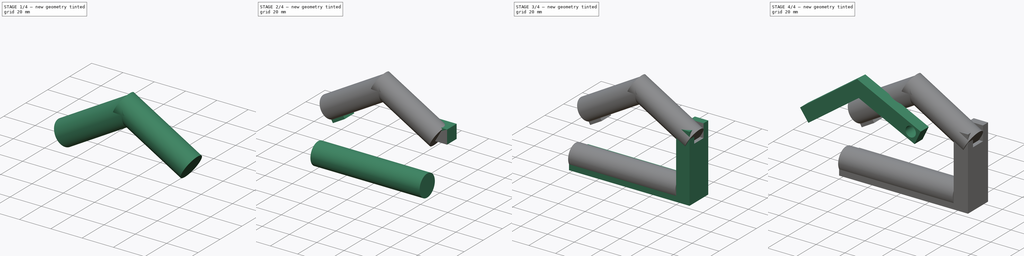
[diagram: build sequence overview — one tinted view per stage of 4, left to right]
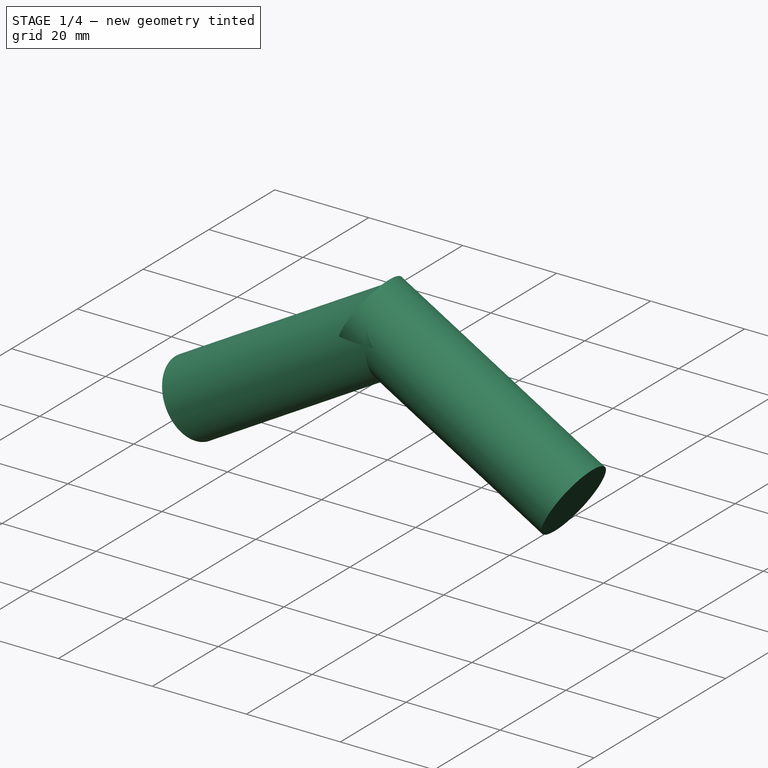
[diagram: stage 1 of 4 — iso view after this stage's code; geometry added in this stage tinted green]
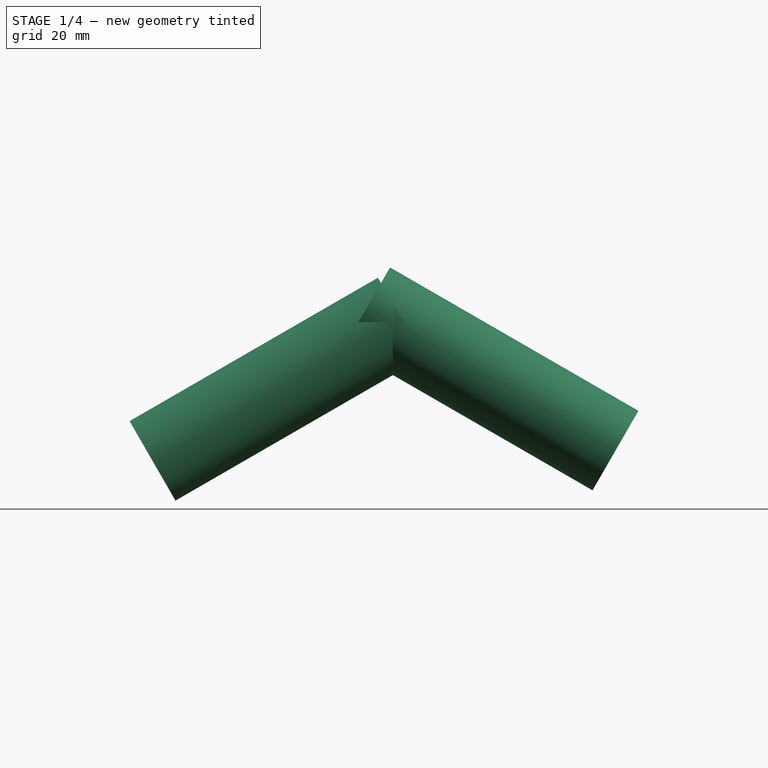
[diagram: stage 1 of 4 — front view after this stage's code; geometry added in this stage tinted green]
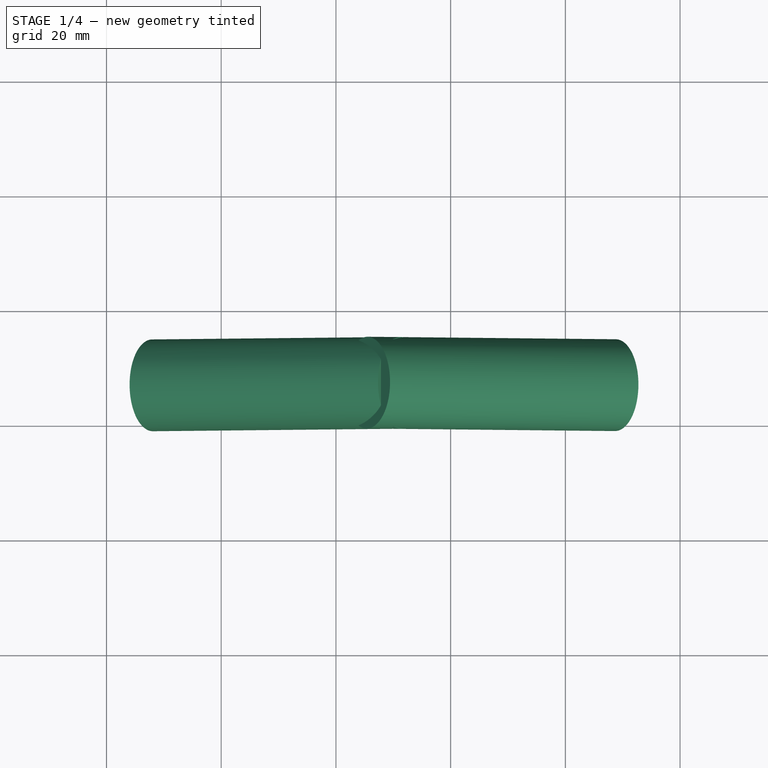
[diagram: stage 1 of 4 — top view after this stage's code; geometry added in this stage tinted green]
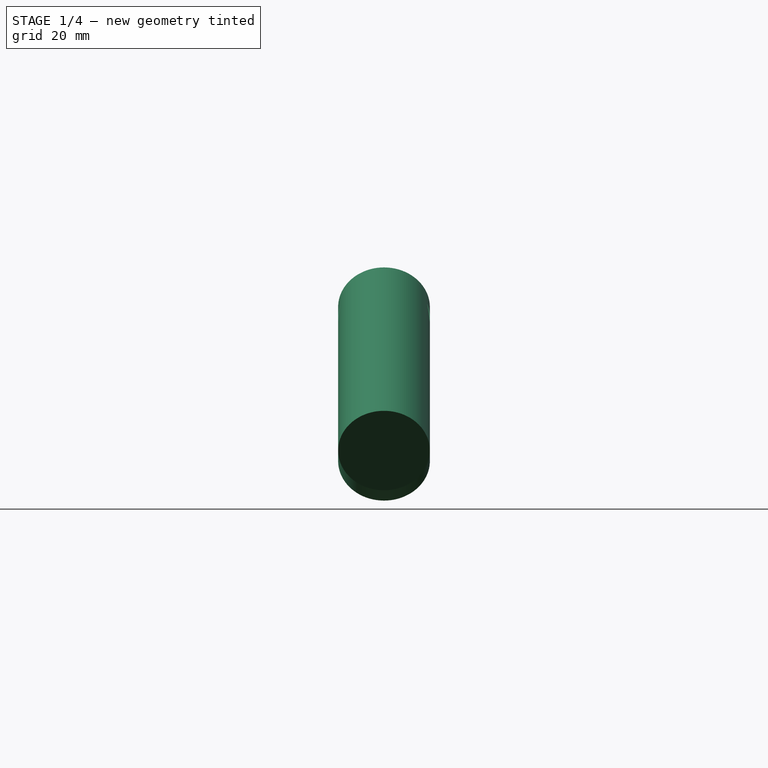
[diagram: stage 1 of 4 — right view after this stage's code; geometry added in this stage tinted green]
FCSTD DOCUMENT  (FreeCAD 1.0R38806 (Git))
Label: Solución Reto 1
License: All rights reserved
LicenseURL: http://en.wikipedia.org/wiki/All_rights_reserved
objects: PartDesign::Body×3, Part::Cut×3, Part::Cylinder×3, Sketcher::SketchObject×2, PartDesign::Pad×2, Part::Box×2
note: 21 computed .brp shape members not serialized (recipe doc carries the construction recipe); baked Part::Feature solids carry a one-line shape summary decoded from their .brp

FEATURE [Part::Cylinder] Cylinder001
  Angle = 360
  AttacherType = Attacher::AttachEngine3D
  FirstAngle = 0
  Height = 50
  Placement = pos=(45.4345,7,67.6847) rot=(0,-1,0;4.18879rad)
  Radius = 8
  SecondAngle = 0
FEATURE [Part::Cylinder] Cylinder002
  Angle = 360
  AttacherType = Attacher::AttachEngine3D
  FirstAngle = 0
  Height = 50
  Placement = pos=(8.02558,7,40.8905) rot=(0,-1,0;5.23599rad)
  Radius = 8
  SecondAngle = 0
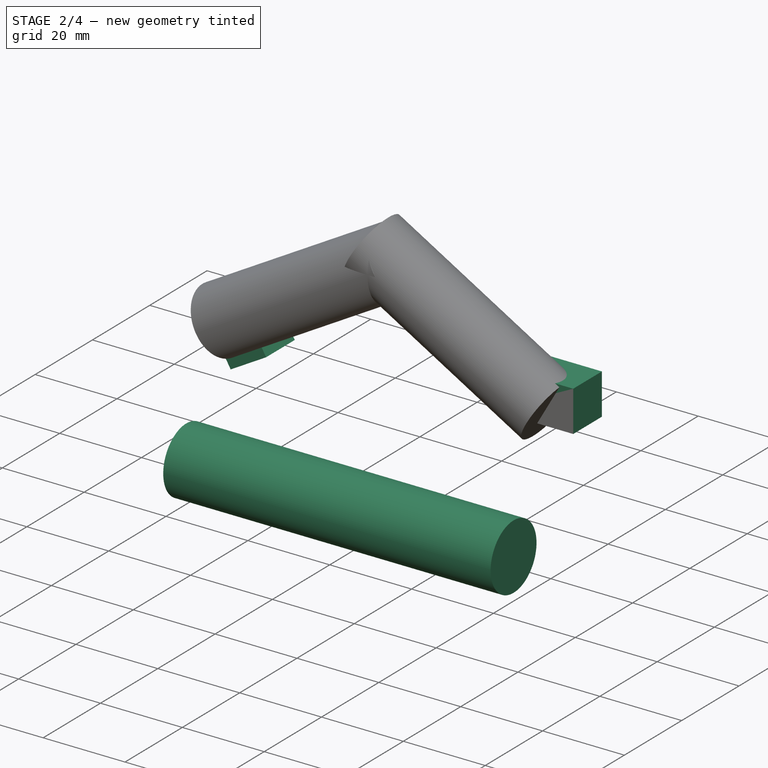
[diagram: stage 2 of 4 — iso view after this stage's code; geometry added in this stage tinted green]
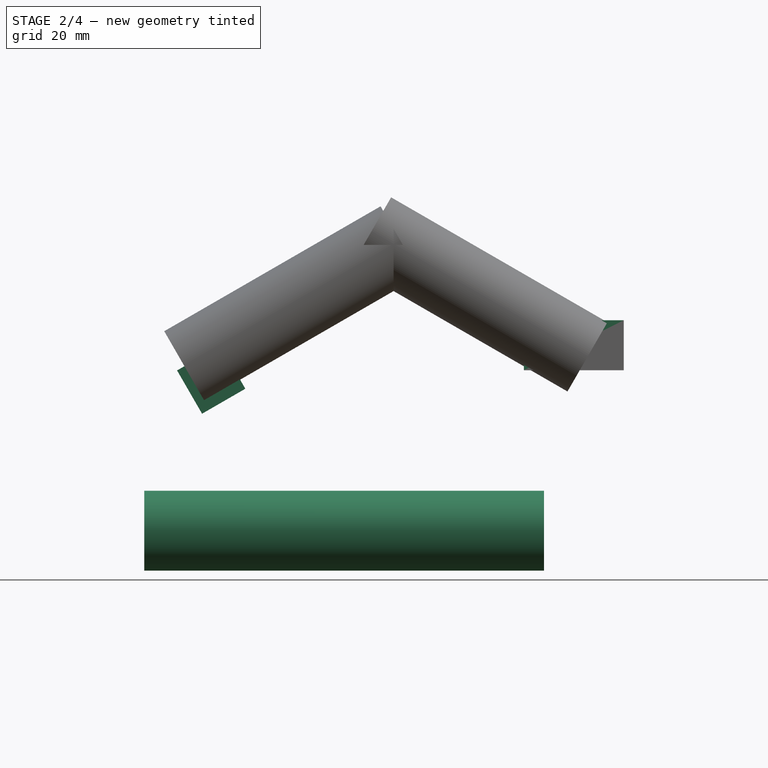
[diagram: stage 2 of 4 — front view after this stage's code; geometry added in this stage tinted green]
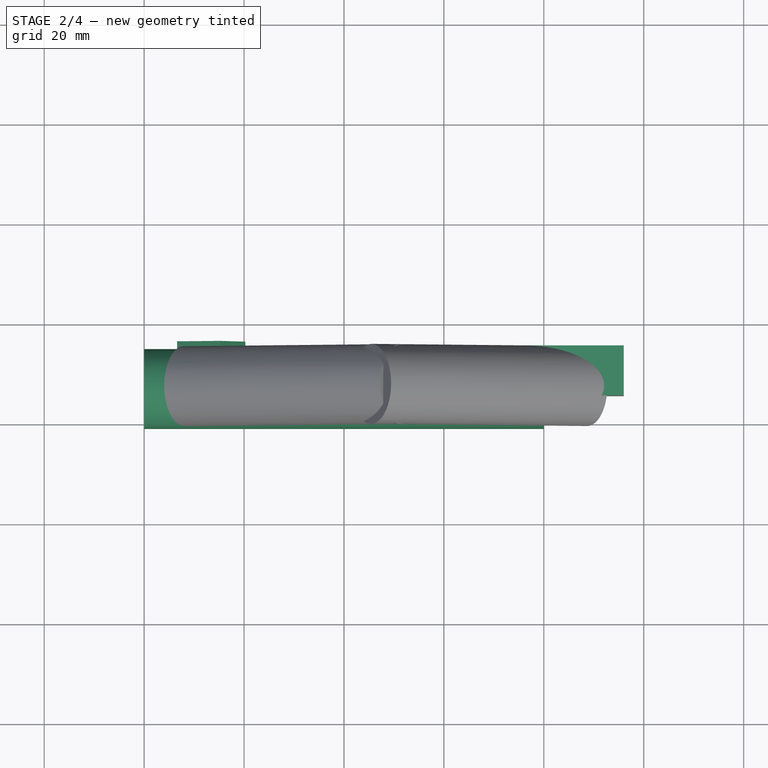
[diagram: stage 2 of 4 — top view after this stage's code; geometry added in this stage tinted green]
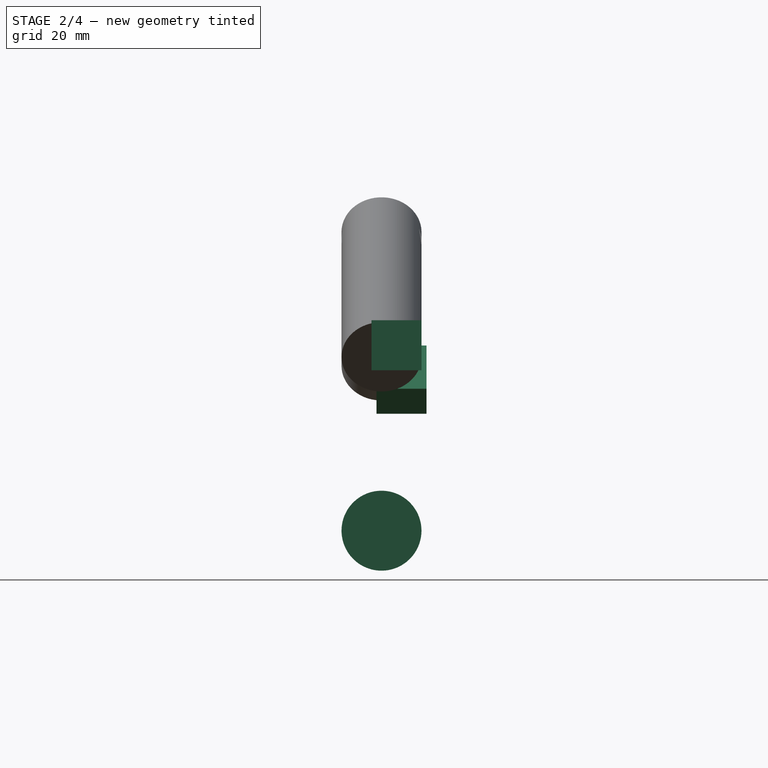
[diagram: stage 2 of 4 — right view after this stage's code; geometry added in this stage tinted green]
FEATURE [PartDesign::Body] Body002  label="Articulación"
  AllowCompound = false
  Group = -> [Sketch001,Pad001]
  Origin = -> Origin002
  Placement = pos=(28,15,0) rot=(0,0,1;0rad)
  Tip = -> Pad001
FEATURE [Part::Box] Box  label="Cubo"
  AttacherType = Attacher::AttachEngine3D
  Height = 10
  Length = 20
  Placement = pos=(76,5,40) rot=(0,0,1;0rad)
  Width = 10
FEATURE [Part::Box] Box001  label="Cube"
  AttacherType = Attacher::AttachEngine3D
  Height = 10
  Length = 10
  Placement = pos=(6.59808,6,39.9641) rot=(0,1,0;1.0472rad)
  Width = 10
FEATURE [Part::Cylinder] Cylinder
  Angle = 360
  AttacherType = Attacher::AttachEngine3D
  FirstAngle = 0
  Height = 80
  Placement = pos=(0.0255765,7,7.89048) rot=(0,-1,0;4.71239rad)
  Radius = 8
  SecondAngle = 0
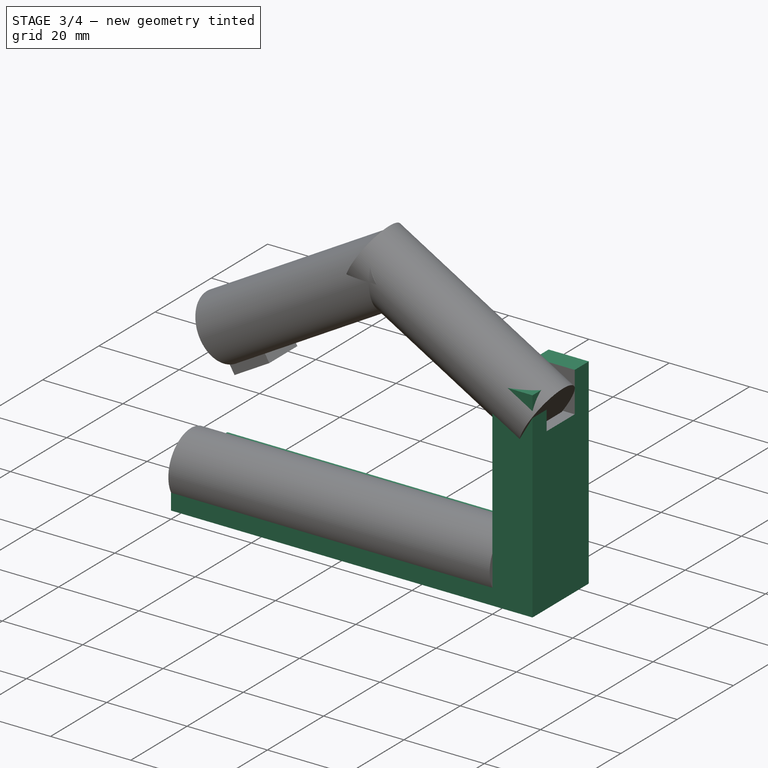
[diagram: stage 3 of 4 — iso view after this stage's code; geometry added in this stage tinted green]
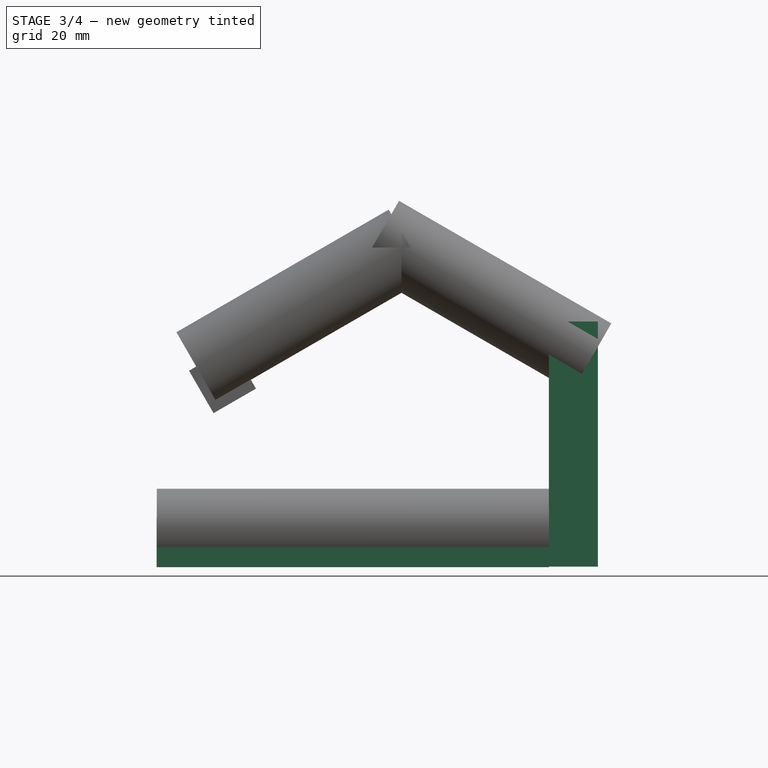
[diagram: stage 3 of 4 — front view after this stage's code; geometry added in this stage tinted green]
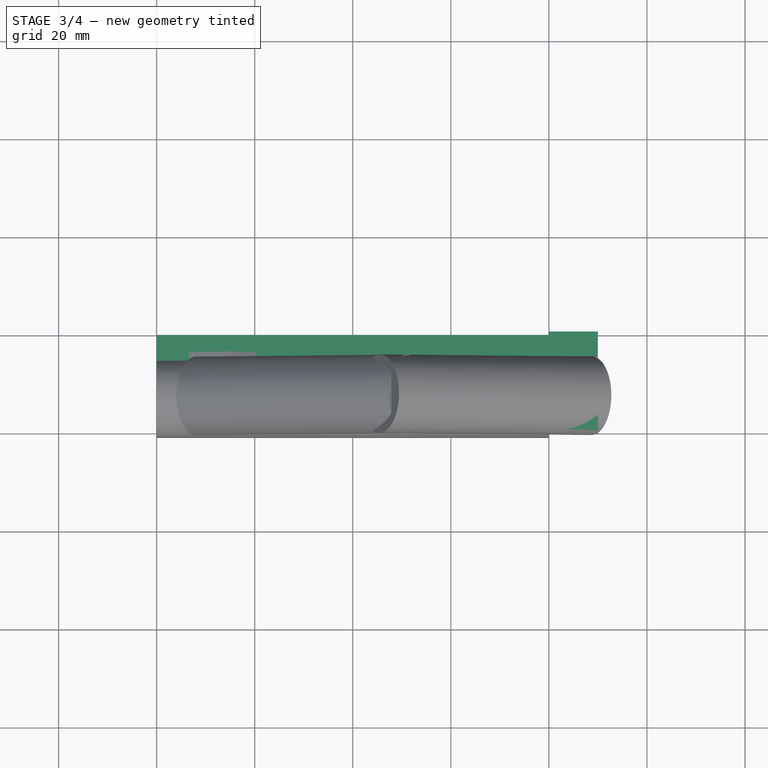
[diagram: stage 3 of 4 — top view after this stage's code; geometry added in this stage tinted green]
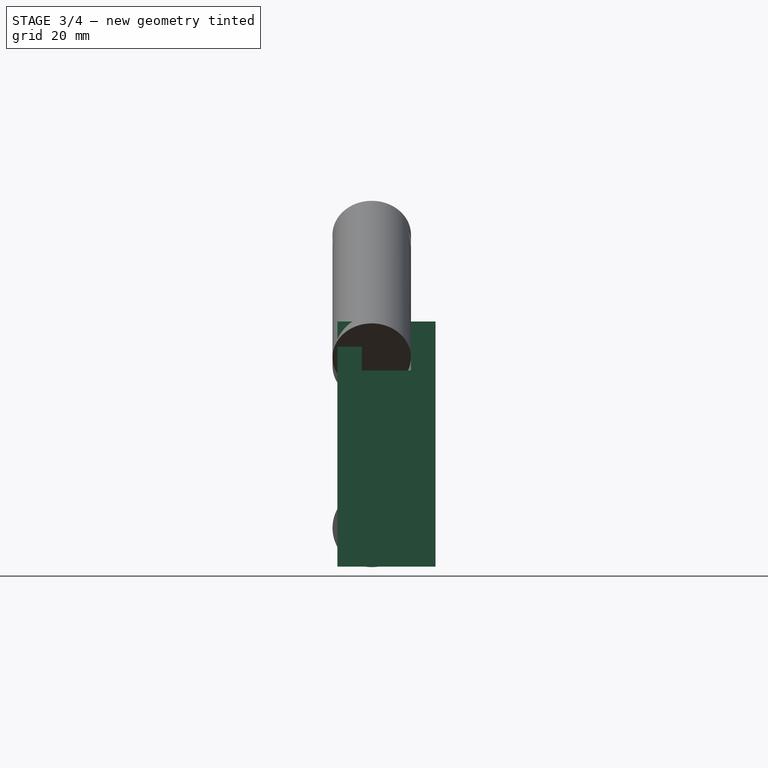
[diagram: stage 3 of 4 — right view after this stage's code; geometry added in this stage tinted green]
FEATURE [Sketcher::SketchObject] Sketch
  ArcFitTolerance = 0
  AttachmentSupport = -> [XZ_Plane]
  FullyConstrained = true
  MakeInternals = false
  MapMode = 5
  Placement = pos=(0,0,0) rot=(1,0,0;1.5708rad)
  expr: Constraints[13] = 1 cm
  sketch-geometry (6):
    g0: LineSegment StartX=0 StartY=0 StartZ=0 EndX=90 EndY=0 EndZ=0
    g1: LineSegment StartX=90 StartY=0 StartZ=0 EndX=90 EndY=50 EndZ=0
    g2: LineSegment StartX=90 StartY=50 StartZ=0 EndX=80 EndY=50 EndZ=0
    g3: LineSegment StartX=80 StartY=50 StartZ=0 EndX=80 EndY=10 EndZ=0
    g4: LineSegment StartX=80 StartY=10 StartZ=0 EndX=0 EndY=10 EndZ=0
    g5: LineSegment StartX=0 StartY=10 StartZ=0 EndX=0 EndY=0 EndZ=0
  constraints (17):
    c: Horizontal(g0)
    c: Coincident(g0,g1)
    c: Vertical(g1)
    c: Coincident(g1,g2)
    c: Horizontal(g2)
    c: Coincident(g2,g3)
    c: Vertical(g3)
    c: Coincident(g3,g4)
    c: Horizontal(g4)
    c: Coincident(g4,g5)
    c: Coincident(g5,g0)
    c: Vertical(g5)
    c: DistanceY(g1,g1) = 50
    c: DistanceY(g5,g5) = 10
    c: Equal(g5,g2)
    c: DistanceX(g0,g0) = 90
    c: Coincident(g0,g-1)
FEATURE [PartDesign::Pad] Pad
  Direction = (0,-1,2e-16)
  Length = 20
  Length2 = 10
  Placement = pos=(0,0,0) rot=(1,0,0;1.5708rad)
  Profile = -> Sketch
  ReferenceAxis = -> Sketch [N_Axis]
  Refine = true
  Suppressed = false
  Type = 0
FEATURE [Part::Cut] Cut001
  Base = -> Body
  Refine = true
  Tool = -> Box
FEATURE [Part::Cut] Cut002  label="Muesca soporte"
  Base = -> Body
  Refine = true
  Tool = -> Box
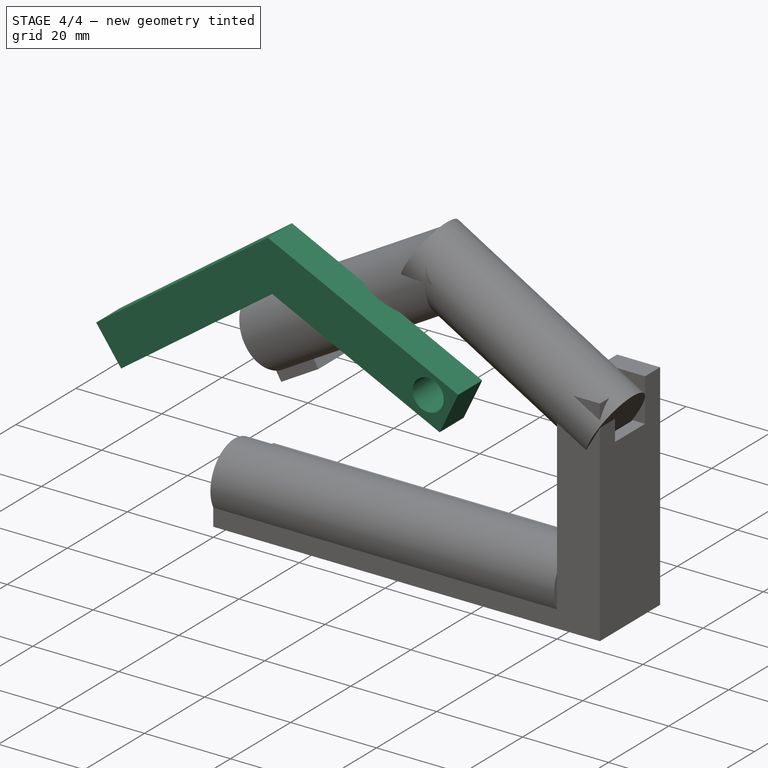
[diagram: stage 4 of 4 — iso view after this stage's code; geometry added in this stage tinted green]
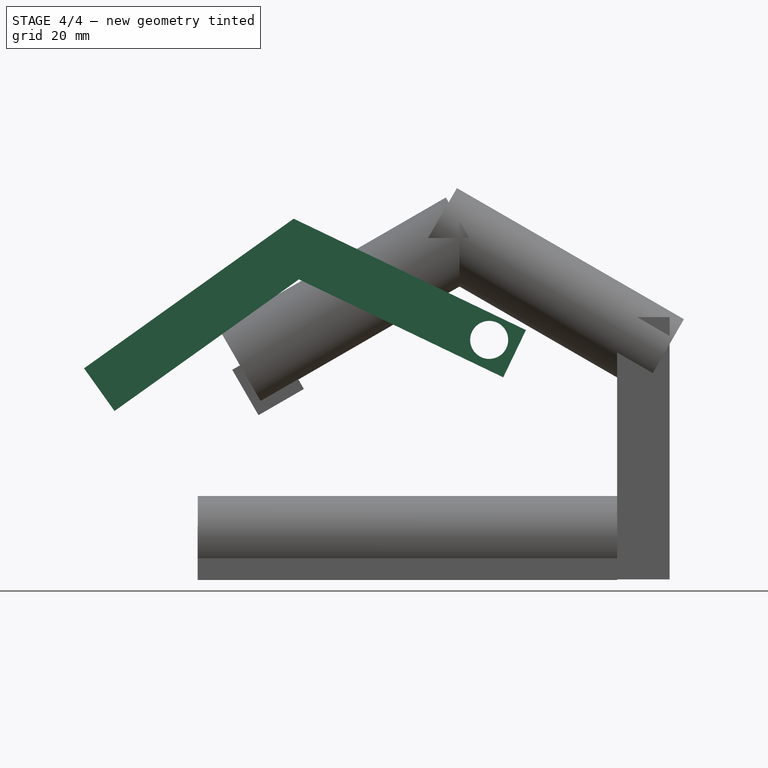
[diagram: stage 4 of 4 — front view after this stage's code; geometry added in this stage tinted green]
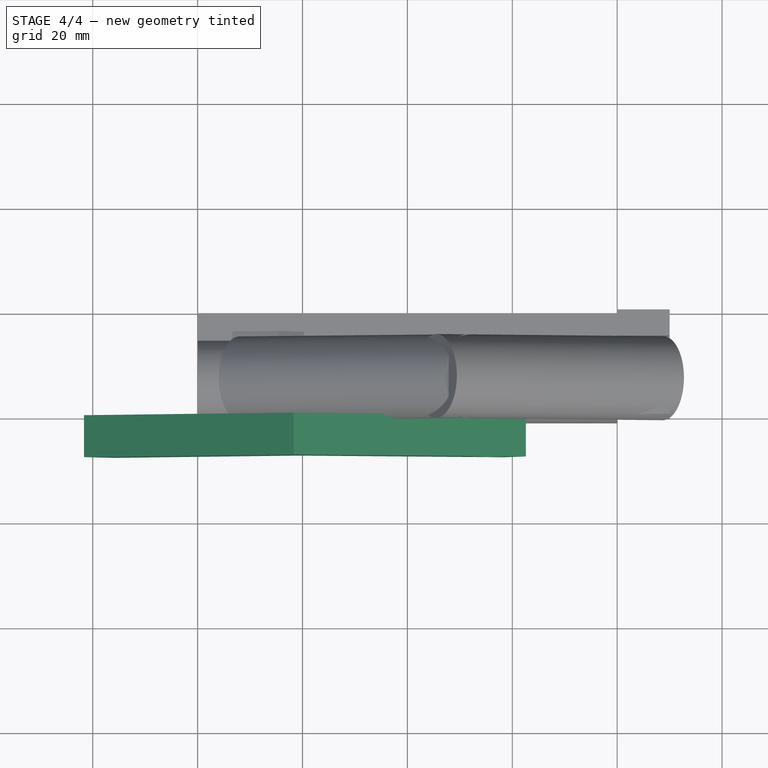
[diagram: stage 4 of 4 — top view after this stage's code; geometry added in this stage tinted green]
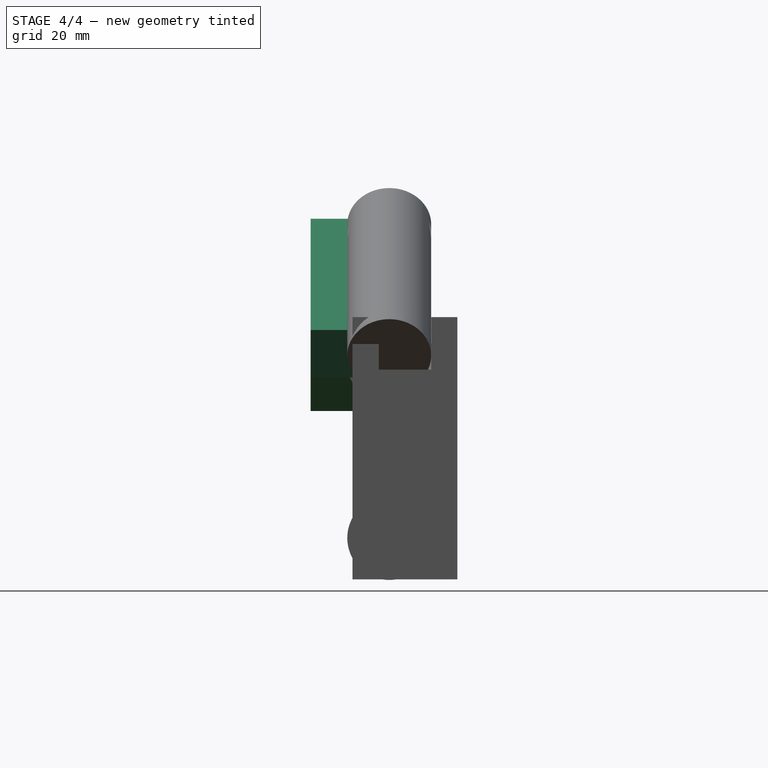
[diagram: stage 4 of 4 — right view after this stage's code; geometry added in this stage tinted green]
FEATURE [PartDesign::Body] Body  label="Cuerpo"
  AllowCompound = false
  Group = -> [Sketch,Pad]
  Origin = -> Origin
  Placement = pos=(0,20,0) rot=(0,0,1;0rad)
  Tip = -> Pad
FEATURE [PartDesign::Body] Body001  label="Ejes"
  AllowCompound = false
  Origin = -> Origin001
FEATURE [Sketcher::SketchObject] Sketch001
  ArcFitTolerance = 0
  AttachmentSupport = -> [XZ_Plane002]
  FullyConstrained = false
  MakeInternals = false
  MapMode = 5
  Placement = pos=(0,0,0) rot=(1,0,0;1.5708rad)
  sketch-geometry (8):
    g0: LineSegment StartX=-21.6648 StartY=40.242 StartZ=0 EndX=18.311 EndY=68.7748 EndZ=0
    g1: LineSegment StartX=18.311 StartY=68.7748 StartZ=0 EndX=62.599 EndY=47.5439 EndZ=0
    g2: LineSegment StartX=62.599 StartY=47.5439 StartZ=0 EndX=58.2762 EndY=38.5265 EndZ=0
    g3: LineSegment StartX=58.2762 StartY=38.5265 StartZ=0 EndX=19.3136 EndY=57.2045 EndZ=0
    g4: LineSegment StartX=19.3136 StartY=57.2045 StartZ=0 EndX=-15.8553 EndY=32.1026 EndZ=0
    g5: LineSegment StartX=-15.8553 StartY=32.1026 StartZ=0 EndX=-21.6648 EndY=40.242 EndZ=0
    g6: Circle CenterX=85.102 CenterY=44.5512 CenterZ=0 NormalX=0 NormalY=0 NormalZ=1 AngleXU=0 Radius=3.625
    g7: Circle CenterX=55.593 CenterY=45.6609 CenterZ=0 NormalX=0 NormalY=0 NormalZ=1 AngleXU=0 Radius=3.625
  constraints (15):
    c: Coincident(g0,g1)
    c: Coincident(g1,g2)
    c: Coincident(g2,g3)
    c: Coincident(g3,g4)
    c: Coincident(g4,g5)
    c: Coincident(g5,g0)
    c: Distance(g5) = 10
    c: Distance(g2) = 10
    c: Equal(g0,g1)
    c: Equal(g4,g3)
    c: Parallel(g0,g4)
    c: Parallel(g1,g3)
    c: Angle(g4,g5) = 1.5708
    c: Diameter(g6) = 7.25
    c: Diameter(g7) = 7.25
FEATURE [PartDesign::Pad] Pad001
  Direction = (0,-1,2e-16)
  Length = 8
  Length2 = 10
  Placement = pos=(0,0,0) rot=(1,0,0;1.5708rad)
  Profile = -> Sketch001
  ReferenceAxis = -> Sketch001 [N_Axis]
  Refine = true
  Suppressed = false
  Type = 0
FEATURE [Part::Cut] Cut  label="Soporte"
  Base = -> Body
  Refine = true
  Tool = -> Box
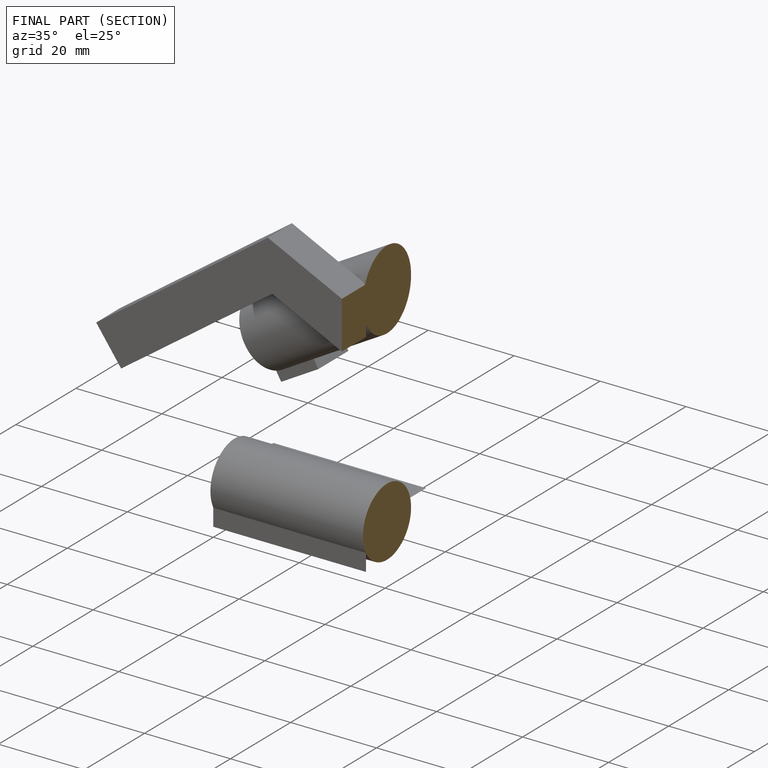
[diagram: finished part — half-section view (interior)]
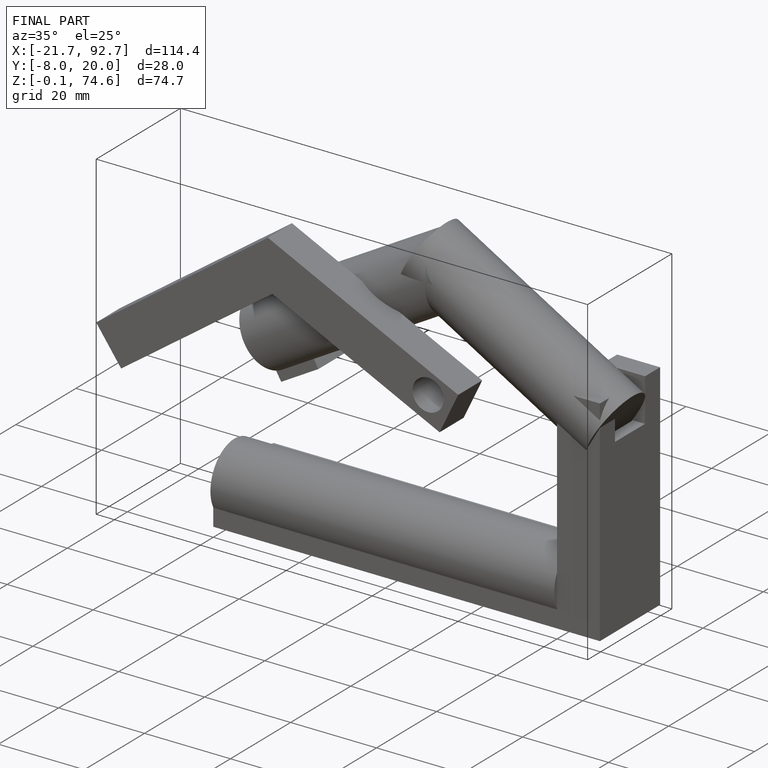
[diagram: finished part — iso view with bounding-box wireframe]
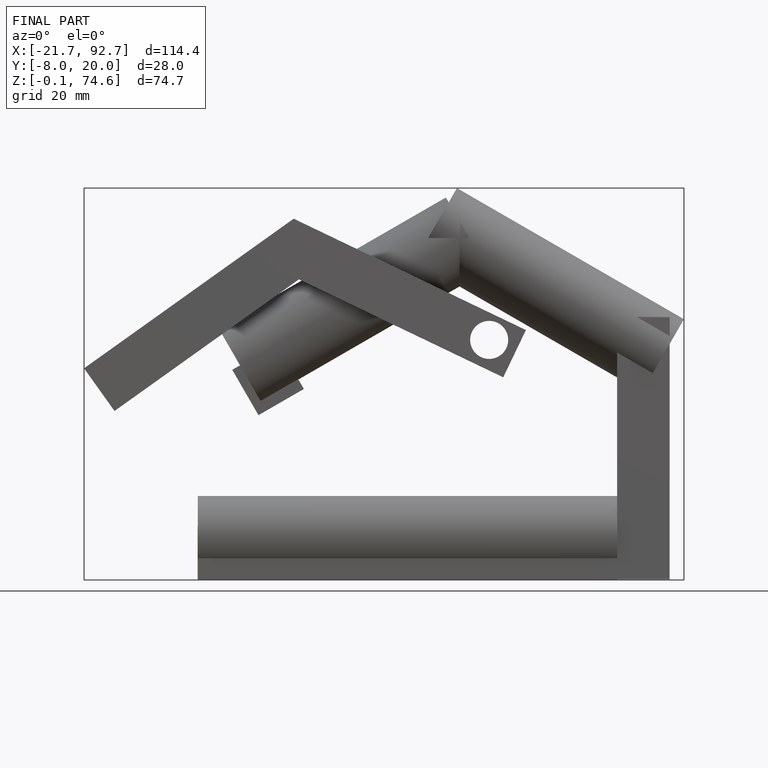
[diagram: finished part — front view with bounding-box wireframe]
